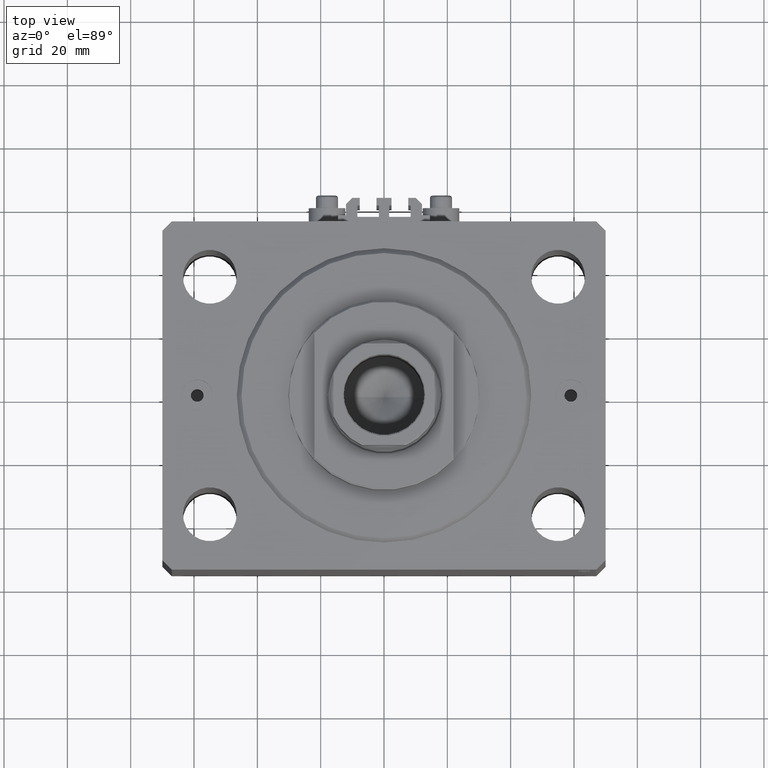
[diagram: clean part render]
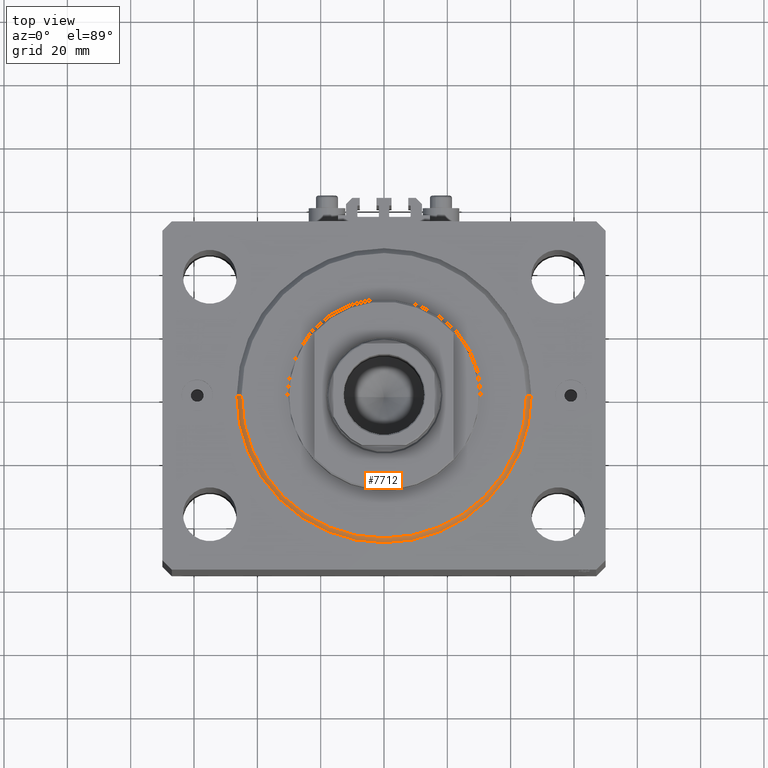
[diagram: same view with one face highlighted and labeled with its STEP entity id]
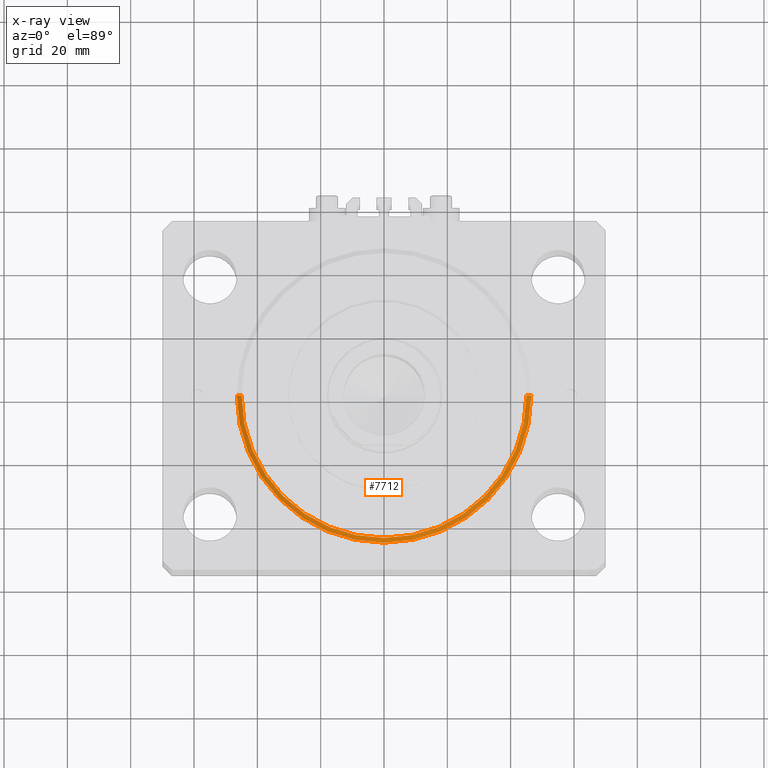
[diagram: x-ray of the same camera — body ghosted, the highlighted face saturated]
A machine part, top view. The second image highlights one B-rep face of the part: STEP entity #7712.
The next image is the same camera in x-ray: the body ghosted, the highlighted face saturated — about 0% of this face is hidden behind the body in this view.
In plain terms, the highlighted conical surface has half-angle 45 deg.
Its self-contained STEP definition (entity closure, byte-faithful):
#1235 = ORIENTED_EDGE ( 'NONE', *, *, #37008, .F. ) ;
#1530 = DIRECTION ( 'NONE',  ( -0.000000000000000000, -0.000000000000000000, 1.000000000000000000 ) ) ;
#2573 = CARTESIAN_POINT ( 'NONE',  ( 0.000000000000000000, 0.000000000000000000, 1.499999999999980460 ) ) ;
#3719 = VECTOR ( 'NONE', #9661, 1000.000000000000114 ) ;
#4101 = AXIS2_PLACEMENT_3D ( 'NONE', #5207, #26451, #41029 ) ;
#5207 = CARTESIAN_POINT ( 'NONE',  ( 0.000000000000000000, 0.000000000000000000, 0.000000000000000000 ) ) ;
#5633 = LINE ( 'NONE', #27570, #3719 ) ;
#6415 = EDGE_CURVE ( 'NONE', #7779, #36798, #28330, .T. ) ;
#6459 = VERTEX_POINT ( 'NONE', #42184 ) ;
#7712 = ADVANCED_FACE ( 'NONE', ( #23946 ), #19196, .T. ) ;
#7779 = VERTEX_POINT ( 'NONE', #42093 ) ;
#9661 = DIRECTION ( 'NONE',  ( -0.7071067811865524577, 8.659560562354993255E-17, 0.7071067811865425767 ) ) ;
#13053 = AXIS2_PLACEMENT_3D ( 'NONE', #2573, #23794, #38850 ) ;
#19196 = CONICAL_SURFACE ( 'NONE', #29870, 46.50000000000000000, 0.7853981633974552734 ) ;
#19551 = EDGE_LOOP ( 'NONE', ( #21319, #1235, #40475, #43831 ) ) ;
#20017 = CIRCLE ( 'NONE', #4101, 45.00000000000000000 ) ;
#21209 = EDGE_CURVE ( 'NONE', #28377, #7779, #5633, .T. ) ;
#21319 = ORIENTED_EDGE ( 'NONE', *, *, #21209, .F. ) ;
#23794 = DIRECTION ( 'NONE',  ( -0.000000000000000000, -0.000000000000000000, 1.000000000000000000 ) ) ;
#23946 = FACE_OUTER_BOUND ( 'NONE', #19551, .T. ) ;
#26451 = DIRECTION ( 'NONE',  ( -0.000000000000000000, -0.000000000000000000, -1.000000000000000000 ) ) ;
#27570 = CARTESIAN_POINT ( 'NONE',  ( -46.50000000000000000, 5.694607616035192278E-15, 1.499999999999980460 ) ) ;
#28330 = CIRCLE ( 'NONE', #13053, 46.50000000000000000 ) ;
#28377 = VERTEX_POINT ( 'NONE', #44195 ) ;
#29638 = DIRECTION ( 'NONE',  ( 0.7071067811865524577, 0.000000000000000000, 0.7071067811865425767 ) ) ;
#29870 = AXIS2_PLACEMENT_3D ( 'NONE', #38049, #1530, #44972 ) ;
#31578 = EDGE_CURVE ( 'NONE', #6459, #36798, #36346, .T. ) ;
#36346 = LINE ( 'NONE', #36576, #39728 ) ;
#36576 = CARTESIAN_POINT ( 'NONE',  ( 46.50000000000000000, 0.000000000000000000, 1.499999999999980460 ) ) ;
#36798 = VERTEX_POINT ( 'NONE', #44273 ) ;
#37008 = EDGE_CURVE ( 'NONE', #6459, #28377, #20017, .T. ) ;
#38049 = CARTESIAN_POINT ( 'NONE',  ( 0.000000000000000000, 0.000000000000000000, 1.499999999999980460 ) ) ;
#38850 = DIRECTION ( 'NONE',  ( 1.000000000000000000, 0.000000000000000000, 0.000000000000000000 ) ) ;
#39728 = VECTOR ( 'NONE', #29638, 1000.000000000000114 ) ;
#40475 = ORIENTED_EDGE ( 'NONE', *, *, #31578, .T. ) ;
#41029 = DIRECTION ( 'NONE',  ( 1.000000000000000000, 0.000000000000000000, 0.000000000000000000 ) ) ;
#42093 = CARTESIAN_POINT ( 'NONE',  ( -46.50000000000000000, 0.000000000000000000, 1.499999999999980460 ) ) ;
#42184 = CARTESIAN_POINT ( 'NONE',  ( 45.00000000000000000, 0.000000000000000000, 0.000000000000000000 ) ) ;
#43831 = ORIENTED_EDGE ( 'NONE', *, *, #6415, .F. ) ;
#44195 = CARTESIAN_POINT ( 'NONE',  ( -45.00000000000000000, 5.602759106099140917E-15, 0.000000000000000000 ) ) ;
#44273 = CARTESIAN_POINT ( 'NONE',  ( 46.50000000000000000, 5.694607616035192278E-15, 1.499999999999980460 ) ) ;
#44972 = DIRECTION ( 'NONE',  ( 1.000000000000000000, 0.000000000000000000, 0.000000000000000000 ) ) ;